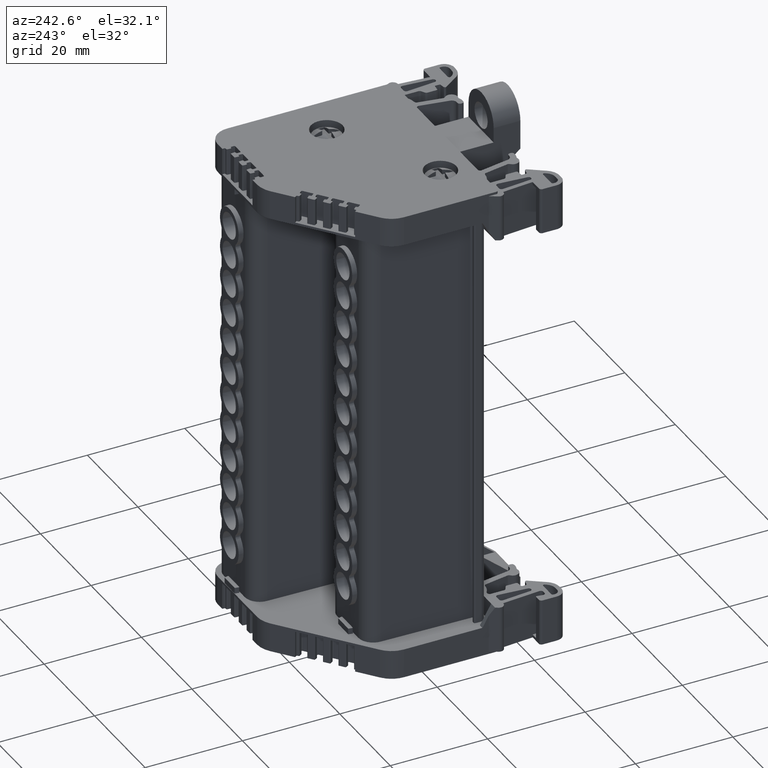
[diagram: clean part render]
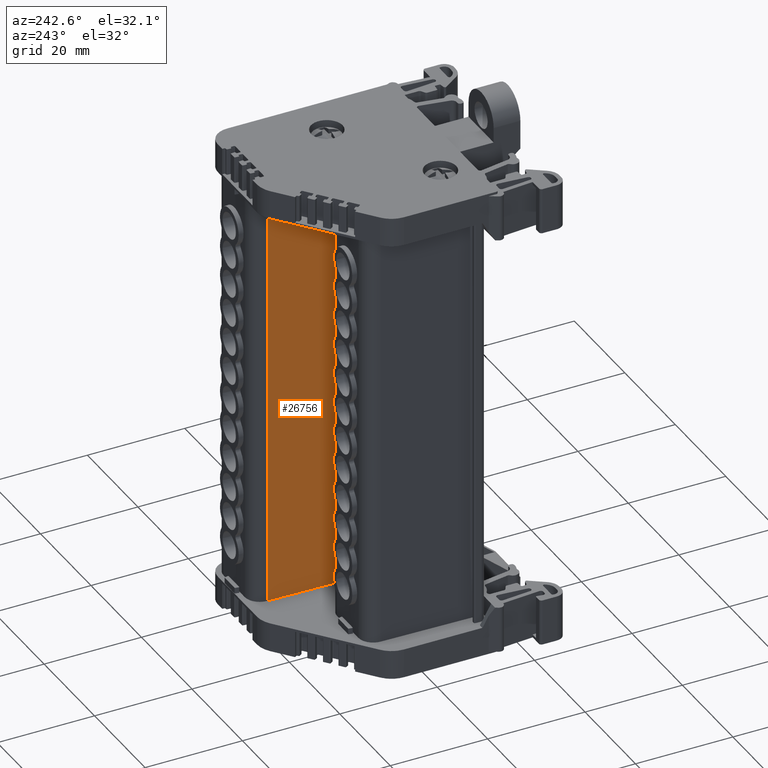
[diagram: same view with one face highlighted and labeled with its STEP entity id]
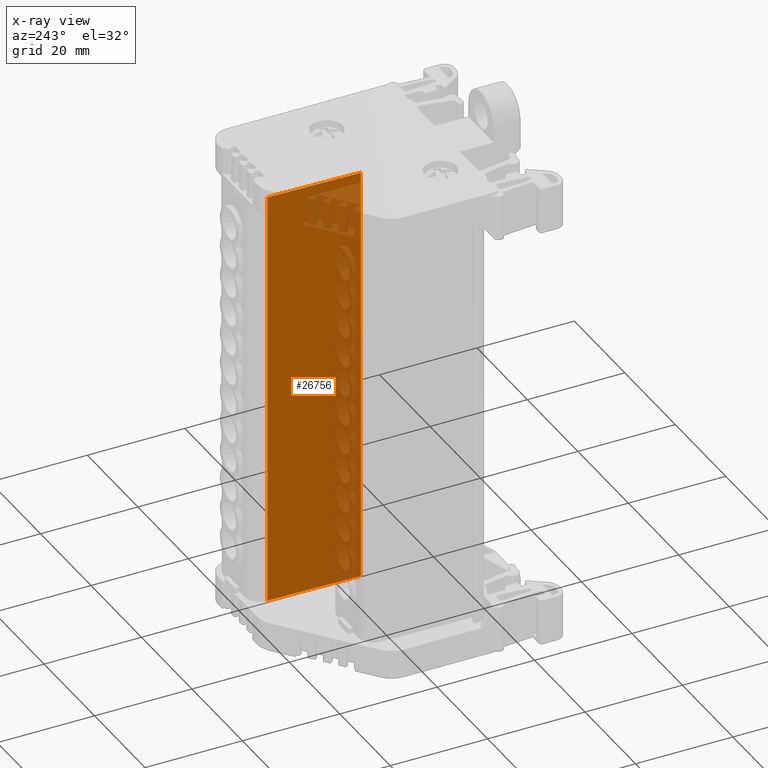
[diagram: x-ray of the same camera — body ghosted, the highlighted face saturated]
A machine part, auxiliary view. The second image highlights one B-rep face of the part: STEP entity #26756.
The next image is the same camera in x-ray: the body ghosted, the highlighted face saturated — about 30% of this face is hidden behind the body in this view.
In plain terms, the highlighted planar face has unit normal (-0.9998, 0.0175, 0).
Its self-contained STEP definition (entity closure, byte-faithful):
#26060 = EDGE_CURVE ( 'NONE', #41214, #73115, #58395, .T. ) ;
#26407 = EDGE_CURVE ( 'NONE', #31601, #31602, #60571, .T. ) ;
#26444 = EDGE_CURVE ( 'NONE', #31601, #41214, #60674, .T. ) ;
#26466 = EDGE_CURVE ( 'NONE', #73115, #31602, #60793, .T. ) ;
#26756 = ADVANCED_FACE ( 'NONE', ( #62509 ), #62518, .T. ) ;
#31601 = VERTEX_POINT ( 'NONE', #65110 ) ;
#31602 = VERTEX_POINT ( 'NONE', #65128 ) ;
#31808 = ORIENTED_EDGE ( 'NONE', *, *, #26466, .T. ) ;
#31861 = ORIENTED_EDGE ( 'NONE', *, *, #26407, .F. ) ;
#31863 = ORIENTED_EDGE ( 'NONE', *, *, #26444, .T. ) ;
#31906 = ORIENTED_EDGE ( 'NONE', *, *, #26060, .T. ) ;
#41214 = VERTEX_POINT ( 'NONE', #69503 ) ;
#58365 = DIRECTION ( 'NONE',  ( 7.260773709496582100E-015, -1.267372765541248700E-016, 1.000000000000000000 ) ) ;
#58395 = LINE ( 'NONE', #58414, #66787 ) ;
#58414 = CARTESIAN_POINT ( 'NONE',  ( -42.13776929207931900, 26.42044704780382200, 127.3834854718337800 ) ) ;
#60559 = DIRECTION ( 'NONE',  ( 6.982962677686110500E-015, -1.604252062634190000E-014, 1.000000000000000000 ) ) ;
#60571 = LINE ( 'NONE', #60574, #66926 ) ;
#60574 = CARTESIAN_POINT ( 'NONE',  ( -41.80561643342627300, 45.44947157171916500, 127.3834854718343200 ) ) ;
#60674 = LINE ( 'NONE', #60687, #66893 ) ;
#60687 = CARTESIAN_POINT ( 'NONE',  ( -41.80561643342736700, 45.44947157172178000, -35.85898586028853400 ) ) ;
#60689 = DIRECTION ( 'NONE',  ( -0.01745240644082752700, -0.9998476951563293200, -1.604206411072561900E-014 ) ) ;
#60759 = DIRECTION ( 'NONE',  ( 0.01745240644083065700, 0.9998476951563293200, -0.0000000000000000000 ) ) ;
#60793 = LINE ( 'NONE', #60794, #66956 ) ;
#60794 = CARTESIAN_POINT ( 'NONE',  ( -42.13776929207992300, 26.42044704780124000, 50.97218928989244100 ) ) ;
#62486 = CARTESIAN_POINT ( 'NONE',  ( -42.13776929207936900, 26.42044704780122900, 127.3834854718337800 ) ) ;
#62487 = DIRECTION ( 'NONE',  ( -0.9998476951563293200, 0.01745240644083065700, 7.261879728953455700E-015 ) ) ;
#62488 = DIRECTION ( 'NONE',  ( -0.01745240644083065700, -0.9998476951563293200, 0.0000000000000000000 ) ) ;
#62509 = FACE_OUTER_BOUND ( 'NONE', #82585, .T. ) ;
#62518 = PLANE ( 'NONE',  #67305 ) ;
#65110 = CARTESIAN_POINT ( 'NONE',  ( -41.80561643342738200, 45.44947157172125400, -35.85898586028850600 ) ) ;
#65128 = CARTESIAN_POINT ( 'NONE',  ( -41.80561643342678500, 45.44947157171952800, 50.97218928989244100 ) ) ;
#66787 = VECTOR ( 'NONE', #58365, 1000.000000000000000 ) ;
#66893 = VECTOR ( 'NONE', #60689, 1000.000000000000200 ) ;
#66926 = VECTOR ( 'NONE', #60559, 1000.000000000000000 ) ;
#66956 = VECTOR ( 'NONE', #60759, 1000.000000000000000 ) ;
#67305 = AXIS2_PLACEMENT_3D ( 'NONE', #62486, #62487, #62488 ) ;
#69503 = CARTESIAN_POINT ( 'NONE',  ( -42.13776929208047800, 26.42044704780384400, -35.85898586028874000 ) ) ;
#73115 = VERTEX_POINT ( 'NONE', #80800 ) ;
#80800 = CARTESIAN_POINT ( 'NONE',  ( -42.13776929207986700, 26.42044704780333600, 50.97218928989244100 ) ) ;
#82585 = EDGE_LOOP ( 'NONE', ( #31906, #31808, #31861, #31863 ) ) ;